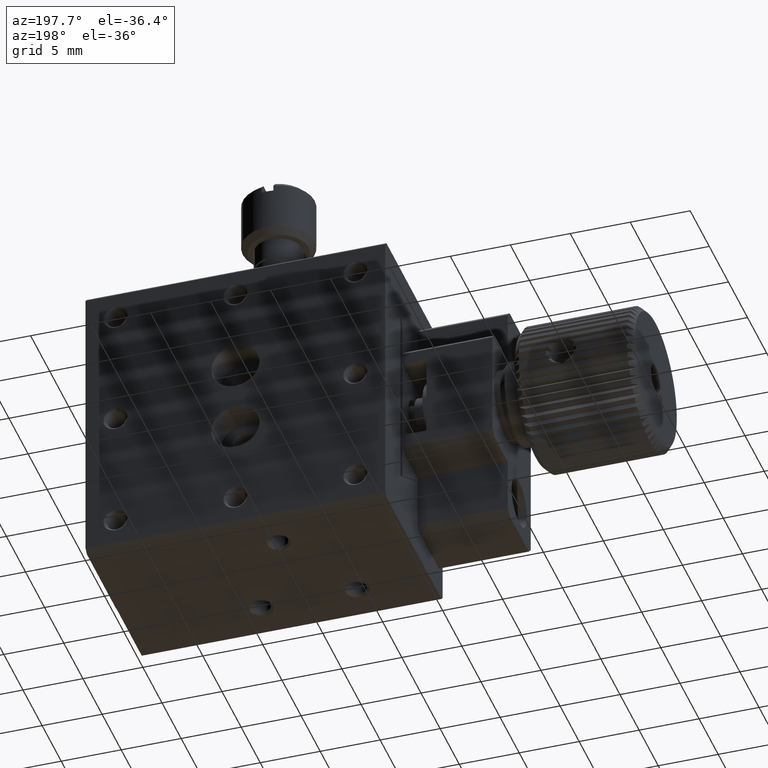
[diagram: clean part render]
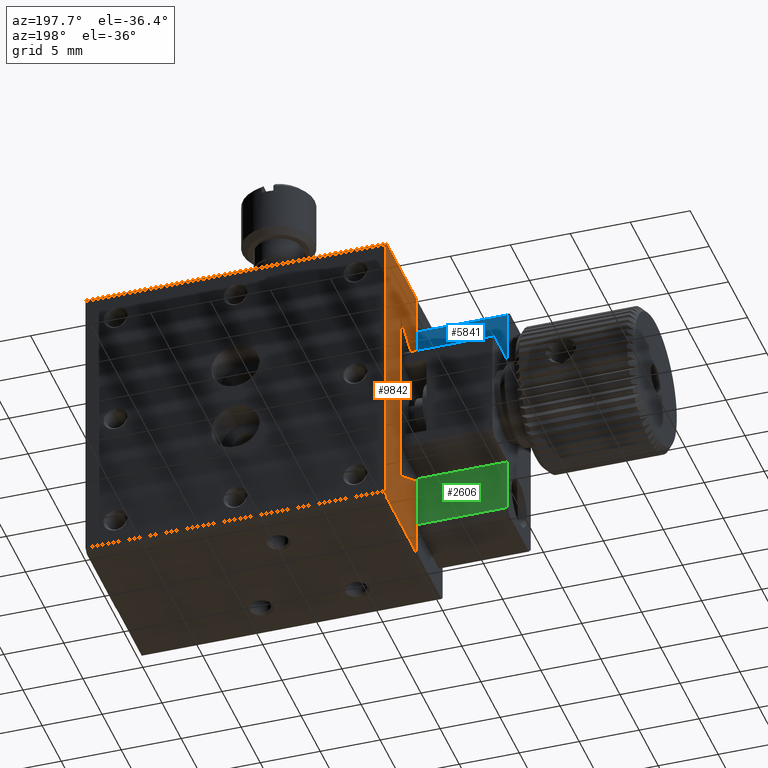
[diagram: same view with three faces highlighted in distinct colors, each labeled with its STEP entity id]
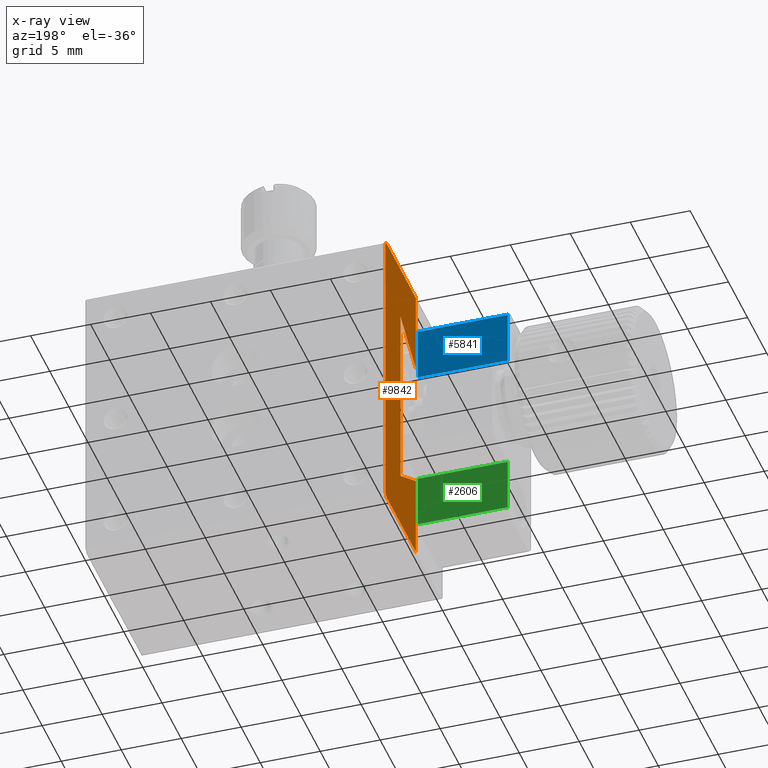
[diagram: x-ray of the same camera — body ghosted, the three highlighted faces saturated]
A machine part, auxiliary view with three faces highlighted in distinct colors.
The next image is the same camera in x-ray (body ghosted, the three faces saturated) — at least one of them is partly hidden behind the body in this view.
Their STEP definitions:

[orange] entity #9842 — the highlighted planar face has unit normal (1, 0, 0).
#291 = CARTESIAN_POINT ( 'NONE',  ( 0.000000000000000000, 15.00000000000000178, -24.69999999999999929 ) ) ;
#315 = CARTESIAN_POINT ( 'NONE',  ( 0.000000000000000000, 14.63400000000001455, -25.06500000000000128 ) ) ;
#422 = LINE ( 'NONE', #7777, #4093 ) ;
#451 = ORIENTED_EDGE ( 'NONE', *, *, #6989, .F. ) ;
#495 = VERTEX_POINT ( 'NONE', #10311 ) ;
#598 = EDGE_LOOP ( 'NONE', ( #8692, #1132, #5462, #1280, #10758, #11751, #9322, #451, #7663, #922 ) ) ;
#714 = DIRECTION ( 'NONE',  ( 0.000000000000000000, -1.000000000000000000, -0.000000000000000000 ) ) ;
#922 = ORIENTED_EDGE ( 'NONE', *, *, #1217, .F. ) ;
#1132 = ORIENTED_EDGE ( 'NONE', *, *, #3689, .T. ) ;
#1217 = EDGE_CURVE ( 'NONE', #495, #5687, #5470, .T. ) ;
#1250 = LINE ( 'NONE', #315, #4942 ) ;
#1261 = VERTEX_POINT ( 'NONE', #2024 ) ;
#1280 = ORIENTED_EDGE ( 'NONE', *, *, #3042, .F. ) ;
#1423 = CARTESIAN_POINT ( 'NONE',  ( 0.000000000000000000, 15.00000000000000355, -0.2999999999999873324 ) ) ;
#1438 = CARTESIAN_POINT ( 'NONE',  ( 0.000000000000000000, 6.999999999999999112, -25.06500000000000128 ) ) ;
#1846 = CARTESIAN_POINT ( 'NONE',  ( -6.071532165918824830E-15, 6.999999999999999112, -18.06500000000000128 ) ) ;
#2024 = CARTESIAN_POINT ( 'NONE',  ( 0.000000000000000000, 14.63400000000001455, -25.06500000000000128 ) ) ;
#2067 = CARTESIAN_POINT ( 'NONE',  ( 0.000000000000000000, 11.00000000000000000, 0.000000000000000000 ) ) ;
#2230 = CARTESIAN_POINT ( 'NONE',  ( 0.000000000000000000, 15.00000000000000000, 0.000000000000000000 ) ) ;
#2566 = CARTESIAN_POINT ( 'NONE',  ( 0.000000000000000000, 15.00000000000000000, -24.69999999999999929 ) ) ;
#2761 = CARTESIAN_POINT ( 'NONE',  ( -3.035766082959412415E-15, 6.999999999999999112, -6.999999999999999112 ) ) ;
#2939 = CARTESIAN_POINT ( 'NONE',  ( 0.000000000000000000, 6.999999999999999112, 0.000000000000000000 ) ) ;
#3008 = LINE ( 'NONE', #2067, #7657 ) ;
#3042 = EDGE_CURVE ( 'NONE', #8343, #1261, #3569, .T. ) ;
#3207 = VECTOR ( 'NONE', #714, 1000.000000000000000 ) ;
#3362 = PLANE ( 'NONE',  #6596 ) ;
#3520 = VECTOR ( 'NONE', #4873, 1000.000000000000114 ) ;
#3569 = LINE ( 'NONE', #3748, #11998 ) ;
#3689 = EDGE_CURVE ( 'NONE', #5030, #5744, #10824, .T. ) ;
#3748 = CARTESIAN_POINT ( 'NONE',  ( 0.000000000000000000, 15.00000000000000000, -25.06500000000000128 ) ) ;
#4063 = DIRECTION ( 'NONE',  ( 0.000000000000000000, 0.7080734329827843565, 0.7061388061167397368 ) ) ;
#4068 = CARTESIAN_POINT ( 'NONE',  ( 0.000000000000000000, 15.00000000000000355, -0.2999999999999879985 ) ) ;
#4093 = VECTOR ( 'NONE', #4171, 1000.000000000000000 ) ;
#4171 = DIRECTION ( 'NONE',  ( 0.000000000000000000, 0.000000000000000000, -1.000000000000000000 ) ) ;
#4465 = VECTOR ( 'NONE', #9888, 1000.000000000000000 ) ;
#4482 = EDGE_CURVE ( 'NONE', #10806, #10751, #3008, .T. ) ;
#4526 = EDGE_CURVE ( 'NONE', #5030, #495, #8796, .T. ) ;
#4686 = LINE ( 'NONE', #2939, #7886 ) ;
#4852 = EDGE_CURVE ( 'NONE', #6176, #8343, #422, .T. ) ;
#4873 = DIRECTION ( 'NONE',  ( 0.000000000000000000, 0.8659692529111527870, 0.5000972435561906737 ) ) ;
#4942 = VECTOR ( 'NONE', #4063, 999.9999999999998863 ) ;
#5030 = VERTEX_POINT ( 'NONE', #1423 ) ;
#5095 = VECTOR ( 'NONE', #10305, 1000.000000000000114 ) ;
#5328 = EDGE_CURVE ( 'NONE', #10751, #6176, #7626, .T. ) ;
#5462 = ORIENTED_EDGE ( 'NONE', *, *, #8327, .F. ) ;
#5470 = LINE ( 'NONE', #9256, #3207 ) ;
#5687 = VERTEX_POINT ( 'NONE', #8233 ) ;
#5744 = VERTEX_POINT ( 'NONE', #2566 ) ;
#5799 = DIRECTION ( 'NONE',  ( 0.000000000000000000, 0.000000000000000000, -1.000000000000000000 ) ) ;
#5827 = EDGE_CURVE ( 'NONE', #5687, #11955, #4686, .T. ) ;
#6032 = DIRECTION ( 'NONE',  ( 1.000000000000000000, 0.000000000000000000, 0.000000000000000000 ) ) ;
#6176 = VERTEX_POINT ( 'NONE', #1846 ) ;
#6268 = VECTOR ( 'NONE', #7862, 1000.000000000000000 ) ;
#6596 = AXIS2_PLACEMENT_3D ( 'NONE', #2230, #6032, #8024 ) ;
#6989 = EDGE_CURVE ( 'NONE', #11955, #10806, #9351, .T. ) ;
#7241 = CARTESIAN_POINT ( 'NONE',  ( -6.071532165918824830E-15, 11.00000000000000000, -4.689999999999999503 ) ) ;
#7354 = DIRECTION ( 'NONE',  ( -0.000000000000000000, 1.000000000000000000, 0.000000000000000000 ) ) ;
#7426 = CARTESIAN_POINT ( 'NONE',  ( -3.035766082959412415E-15, 11.00000000000000000, -20.37499999999999645 ) ) ;
#7626 = LINE ( 'NONE', #10430, #5095 ) ;
#7657 = VECTOR ( 'NONE', #11791, 1000.000000000000000 ) ;
#7663 = ORIENTED_EDGE ( 'NONE', *, *, #5827, .F. ) ;
#7777 = CARTESIAN_POINT ( 'NONE',  ( 0.000000000000000000, 6.999999999999999112, 0.000000000000000000 ) ) ;
#7862 = DIRECTION ( 'NONE',  ( 0.000000000000000000, -0.7071067811865122676, 0.7071067811865827668 ) ) ;
#7886 = VECTOR ( 'NONE', #5799, 1000.000000000000000 ) ;
#8024 = DIRECTION ( 'NONE',  ( 0.000000000000000000, 0.000000000000000000, -1.000000000000000000 ) ) ;
#8233 = CARTESIAN_POINT ( 'NONE',  ( 0.000000000000000000, 6.999999999999999112, -3.205160538812779822E-15 ) ) ;
#8327 = EDGE_CURVE ( 'NONE', #1261, #5744, #1250, .T. ) ;
#8343 = VERTEX_POINT ( 'NONE', #1438 ) ;
#8692 = ORIENTED_EDGE ( 'NONE', *, *, #4526, .F. ) ;
#8796 = LINE ( 'NONE', #4068, #6268 ) ;
#9077 = FACE_OUTER_BOUND ( 'NONE', #598, .T. ) ;
#9256 = CARTESIAN_POINT ( 'NONE',  ( 0.000000000000000000, 15.00000000000000000, -3.632077277826439854E-15 ) ) ;
#9322 = ORIENTED_EDGE ( 'NONE', *, *, #4482, .F. ) ;
#9351 = LINE ( 'NONE', #9598, #3520 ) ;
#9598 = CARTESIAN_POINT ( 'NONE',  ( 0.000000000000000000, 6.999999999999999112, -7.000000000000000000 ) ) ;
#9842 = ADVANCED_FACE ( 'NONE', ( #9077 ), #3362, .F. ) ;
#9888 = DIRECTION ( 'NONE',  ( 0.000000000000000000, -6.067341726462099832E-17, -1.000000000000000000 ) ) ;
#10305 = DIRECTION ( 'NONE',  ( 0.000000000000000000, -0.8659692529111527870, 0.5000972435561906737 ) ) ;
#10311 = CARTESIAN_POINT ( 'NONE',  ( 0.000000000000000000, 14.70000000000004725, -3.747761649630643177E-15 ) ) ;
#10430 = CARTESIAN_POINT ( 'NONE',  ( 0.000000000000000000, 11.00000000000000000, -20.37500000000000000 ) ) ;
#10751 = VERTEX_POINT ( 'NONE', #7426 ) ;
#10758 = ORIENTED_EDGE ( 'NONE', *, *, #4852, .F. ) ;
#10806 = VERTEX_POINT ( 'NONE', #7241 ) ;
#10824 = LINE ( 'NONE', #291, #4465 ) ;
#11751 = ORIENTED_EDGE ( 'NONE', *, *, #5328, .F. ) ;
#11791 = DIRECTION ( 'NONE',  ( 0.000000000000000000, 0.000000000000000000, -1.000000000000000000 ) ) ;
#11955 = VERTEX_POINT ( 'NONE', #2761 ) ;
#11998 = VECTOR ( 'NONE', #7354, 1000.000000000000000 ) ;

[blue] entity #5841 — the highlighted planar face has unit normal (0, 1, 0).
#126 = DIRECTION ( 'NONE',  ( 1.000000000000000000, 0.000000000000000000, -0.000000000000000000 ) ) ;
#525 = VECTOR ( 'NONE', #126, 1000.000000000000000 ) ;
#534 = LINE ( 'NONE', #11066, #9989 ) ;
#680 = ORIENTED_EDGE ( 'NONE', *, *, #2559, .F. ) ;
#926 = LINE ( 'NONE', #3810, #3798 ) ;
#942 = EDGE_CURVE ( 'NONE', #5252, #12237, #926, .T. ) ;
#973 = CARTESIAN_POINT ( 'NONE',  ( -7.500000000000000000, 6.500000000000000888, -7.500000000000000000 ) ) ;
#1752 = LINE ( 'NONE', #11422, #525 ) ;
#1932 = DIRECTION ( 'NONE',  ( 0.000000000000000000, 0.000000000000000000, -1.000000000000000000 ) ) ;
#2513 = AXIS2_PLACEMENT_3D ( 'NONE', #7670, #2815, #9416 ) ;
#2559 = EDGE_CURVE ( 'NONE', #6295, #12237, #534, .T. ) ;
#2815 = DIRECTION ( 'NONE',  ( 0.000000000000000000, 1.000000000000000000, 0.000000000000000000 ) ) ;
#2862 = VECTOR ( 'NONE', #8462, 1000.000000000000000 ) ;
#3483 = EDGE_CURVE ( 'NONE', #6295, #7252, #3611, .T. ) ;
#3526 = CARTESIAN_POINT ( 'NONE',  ( 0.000000000000000000, 6.500000000000000888, -3.000000000000000000 ) ) ;
#3611 = LINE ( 'NONE', #973, #2862 ) ;
#3798 = VECTOR ( 'NONE', #1932, 1000.000000000000000 ) ;
#3810 = CARTESIAN_POINT ( 'NONE',  ( 0.000000000000000000, 6.500000000000000888, 0.000000000000000000 ) ) ;
#3879 = PLANE ( 'NONE',  #2513 ) ;
#4406 = ORIENTED_EDGE ( 'NONE', *, *, #6967, .T. ) ;
#4564 = FACE_OUTER_BOUND ( 'NONE', #6858, .T. ) ;
#5252 = VERTEX_POINT ( 'NONE', #3526 ) ;
#5841 = ADVANCED_FACE ( 'NONE', ( #4564 ), #3879, .T. ) ;
#6295 = VERTEX_POINT ( 'NONE', #9062 ) ;
#6858 = EDGE_LOOP ( 'NONE', ( #7150, #4406, #8968, #680 ) ) ;
#6967 = EDGE_CURVE ( 'NONE', #7252, #5252, #1752, .T. ) ;
#7150 = ORIENTED_EDGE ( 'NONE', *, *, #3483, .T. ) ;
#7252 = VERTEX_POINT ( 'NONE', #8156 ) ;
#7670 = CARTESIAN_POINT ( 'NONE',  ( -7.500000000000000000, 6.500000000000000888, -7.500000000000000000 ) ) ;
#8138 = DIRECTION ( 'NONE',  ( 1.000000000000000000, 0.000000000000000000, -0.000000000000000000 ) ) ;
#8156 = CARTESIAN_POINT ( 'NONE',  ( -7.500000000000000000, 6.500000000000000888, -3.000000000000000000 ) ) ;
#8462 = DIRECTION ( 'NONE',  ( 0.000000000000000000, -0.000000000000000000, 1.000000000000000000 ) ) ;
#8855 = CARTESIAN_POINT ( 'NONE',  ( 0.000000000000000000, 6.500000000000000888, -7.500000000000000000 ) ) ;
#8968 = ORIENTED_EDGE ( 'NONE', *, *, #942, .T. ) ;
#9062 = CARTESIAN_POINT ( 'NONE',  ( -7.500000000000000000, 6.500000000000000888, -7.500000000000000000 ) ) ;
#9416 = DIRECTION ( 'NONE',  ( 0.000000000000000000, -0.000000000000000000, 1.000000000000000000 ) ) ;
#9989 = VECTOR ( 'NONE', #8138, 1000.000000000000000 ) ;
#11066 = CARTESIAN_POINT ( 'NONE',  ( -7.500000000000000000, 6.500000000000000888, -7.500000000000000000 ) ) ;
#11422 = CARTESIAN_POINT ( 'NONE',  ( -7.500000000000000000, 6.500000000000000888, -3.000000000000000000 ) ) ;
#12237 = VERTEX_POINT ( 'NONE', #8855 ) ;

[green] entity #2606 — the highlighted planar face has unit normal (0, 1, 0).
#523 = CARTESIAN_POINT ( 'NONE',  ( -7.500000000000000000, 6.500000000000000888, -17.50000000000000000 ) ) ;
#604 = CARTESIAN_POINT ( 'NONE',  ( -7.500000000000000000, 6.500000000000000888, -22.00000000000000000 ) ) ;
#1594 = DIRECTION ( 'NONE',  ( 0.000000000000000000, -0.000000000000000000, 1.000000000000000000 ) ) ;
#2012 = LINE ( 'NONE', #12302, #7788 ) ;
#2298 = VERTEX_POINT ( 'NONE', #5664 ) ;
#2606 = ADVANCED_FACE ( 'NONE', ( #3476 ), #3357, .T. ) ;
#3067 = CARTESIAN_POINT ( 'NONE',  ( -7.500000000000000000, 6.500000000000000888, -17.50000000000000000 ) ) ;
#3357 = PLANE ( 'NONE',  #7614 ) ;
#3476 = FACE_OUTER_BOUND ( 'NONE', #7850, .T. ) ;
#4060 = VERTEX_POINT ( 'NONE', #7818 ) ;
#4270 = ORIENTED_EDGE ( 'NONE', *, *, #7733, .T. ) ;
#5326 = VECTOR ( 'NONE', #12013, 1000.000000000000000 ) ;
#5664 = CARTESIAN_POINT ( 'NONE',  ( 0.000000000000000000, 6.500000000000000888, -17.50000000000000000 ) ) ;
#6055 = DIRECTION ( 'NONE',  ( -1.000000000000000000, 0.000000000000000000, -0.000000000000000000 ) ) ;
#6428 = VECTOR ( 'NONE', #6872, 1000.000000000000000 ) ;
#6504 = VERTEX_POINT ( 'NONE', #10059 ) ;
#6872 = DIRECTION ( 'NONE',  ( -1.000000000000000000, -0.000000000000000000, 0.000000000000000000 ) ) ;
#7274 = LINE ( 'NONE', #604, #5326 ) ;
#7614 = AXIS2_PLACEMENT_3D ( 'NONE', #10947, #12001, #1594 ) ;
#7733 = EDGE_CURVE ( 'NONE', #4060, #9096, #7274, .T. ) ;
#7750 = DIRECTION ( 'NONE',  ( 0.000000000000000000, 0.000000000000000000, -1.000000000000000000 ) ) ;
#7753 = LINE ( 'NONE', #11555, #6428 ) ;
#7788 = VECTOR ( 'NONE', #7750, 1000.000000000000000 ) ;
#7794 = LINE ( 'NONE', #3067, #9105 ) ;
#7818 = CARTESIAN_POINT ( 'NONE',  ( -7.500000000000000000, 6.500000000000000888, -22.00000000000000000 ) ) ;
#7850 = EDGE_LOOP ( 'NONE', ( #4270, #10901, #8575, #10595 ) ) ;
#8310 = EDGE_CURVE ( 'NONE', #2298, #9096, #7794, .T. ) ;
#8575 = ORIENTED_EDGE ( 'NONE', *, *, #10440, .T. ) ;
#9096 = VERTEX_POINT ( 'NONE', #523 ) ;
#9105 = VECTOR ( 'NONE', #6055, 1000.000000000000000 ) ;
#10059 = CARTESIAN_POINT ( 'NONE',  ( 2.602085213965210642E-15, 6.500000000000000888, -22.00000000000000000 ) ) ;
#10440 = EDGE_CURVE ( 'NONE', #2298, #6504, #2012, .T. ) ;
#10595 = ORIENTED_EDGE ( 'NONE', *, *, #11696, .T. ) ;
#10901 = ORIENTED_EDGE ( 'NONE', *, *, #8310, .F. ) ;
#10947 = CARTESIAN_POINT ( 'NONE',  ( -7.500000000000000000, 6.500000000000000888, -22.00000000000000000 ) ) ;
#11555 = CARTESIAN_POINT ( 'NONE',  ( -7.500000000000000000, 6.500000000000000888, -22.00000000000000000 ) ) ;
#11696 = EDGE_CURVE ( 'NONE', #6504, #4060, #7753, .T. ) ;
#12001 = DIRECTION ( 'NONE',  ( 0.000000000000000000, 1.000000000000000000, 0.000000000000000000 ) ) ;
#12013 = DIRECTION ( 'NONE',  ( 0.000000000000000000, -0.000000000000000000, 1.000000000000000000 ) ) ;
#12302 = CARTESIAN_POINT ( 'NONE',  ( 0.000000000000000000, 6.500000000000000888, 0.000000000000000000 ) ) ;